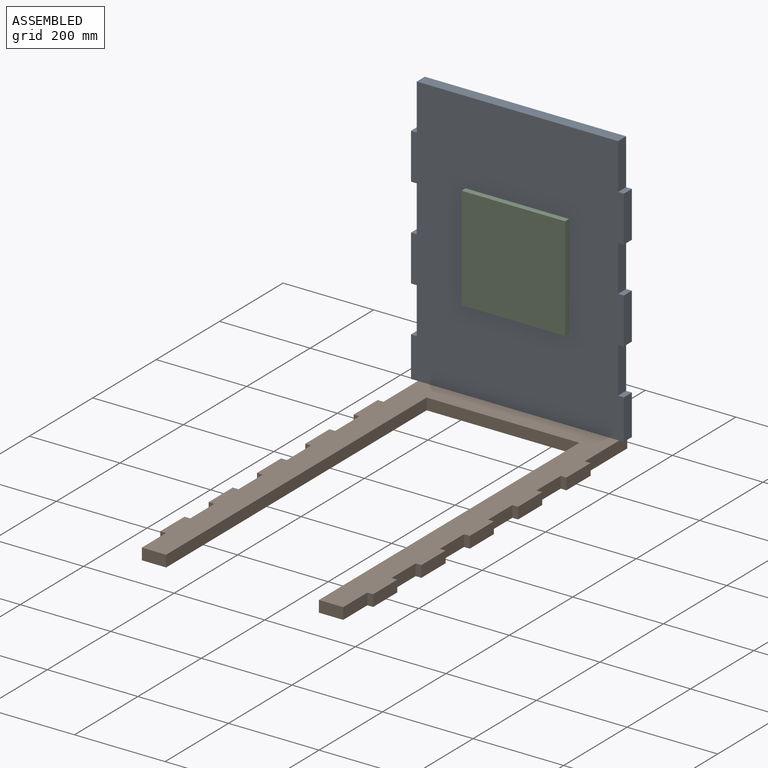
[diagram: assembled view]
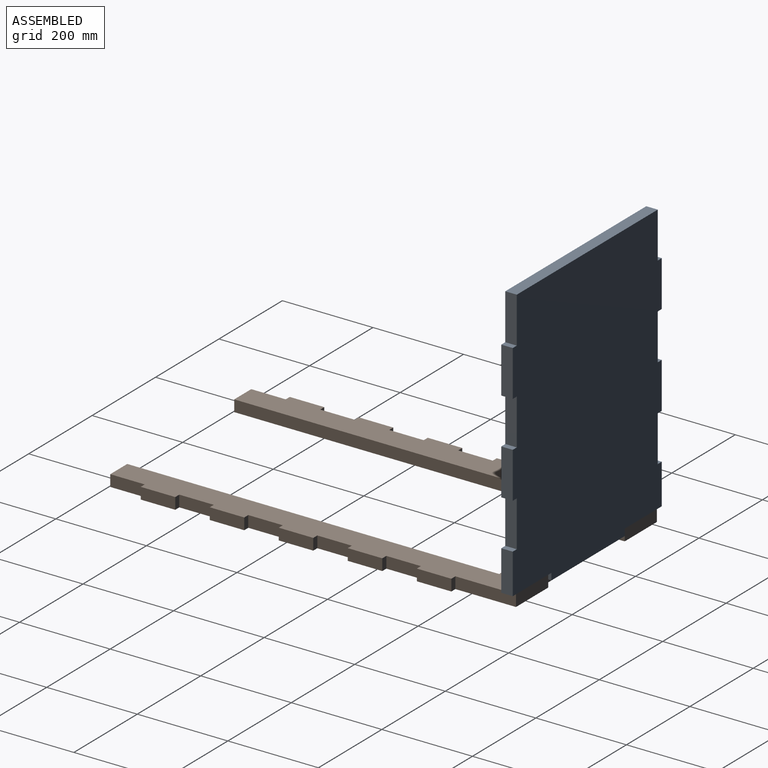
[diagram: assembled view, second angle]
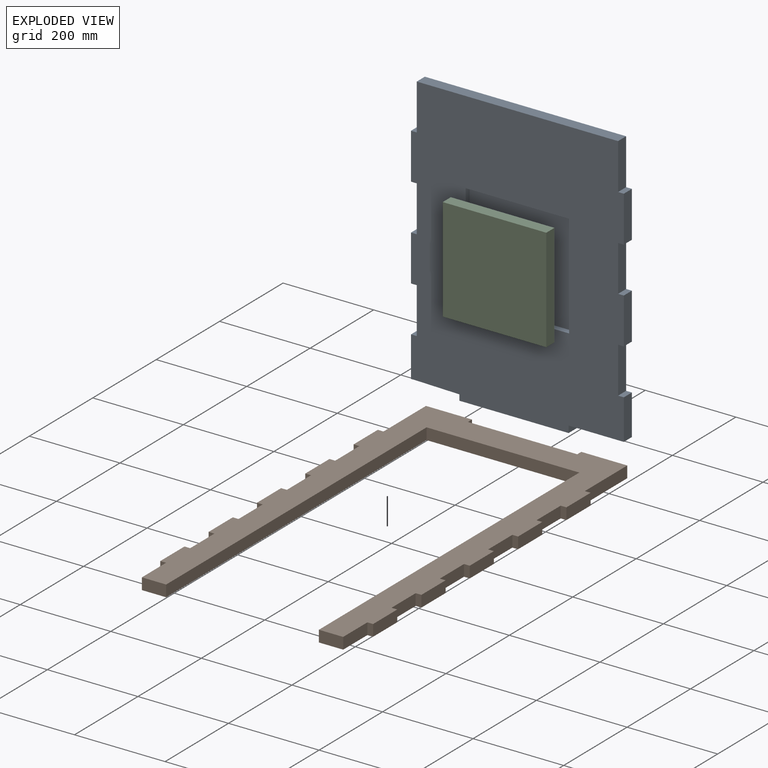
[diagram: exploded view]
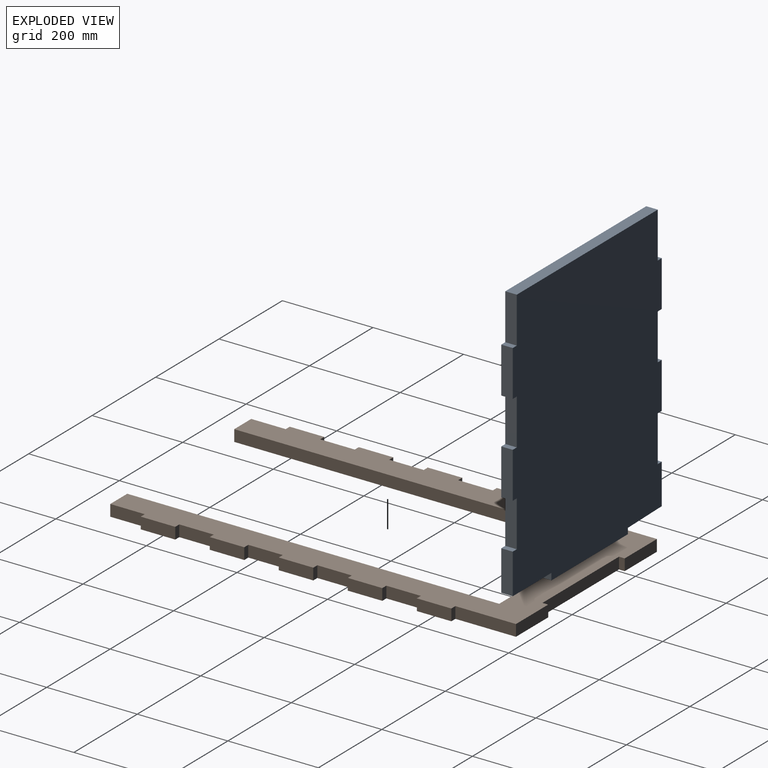
[diagram: exploded view, second angle]
ASSEMBLY  parts=3 mates=2
PART A: 36 faces, bbox 469.9x25.4x611.8 mm
  f0: plane 228.6x12.7mm, normal (1,0,0), area 2903.2mm2, adj f1,f32,f33,f35
  f1: plane 228.6x12.7mm, normal (0,0,-1), area 2903.2mm2, adj f0,f2,f33,f35
  f2: plane 228.6x12.7mm, normal (-1,0,0), area 2903.2mm2, adj f1,f32,f33,f35
  f3: plane 25.4x12.7mm, normal (0,0,1), area 322.6mm2, adj f4,f31,f33,f34
  f4: plane 101.6x25.4mm, normal (1,0,0), area 2580.6mm2, adj f3,f5,f33,f34
  f5: plane 444.5x25.4mm, normal (0,0,1), area 11290.3mm2, adj f4,f6,f33,f34
  f6: plane 101.6x25.4mm, normal (-1,0,0), area 2580.6mm2, adj f5,f7,f33,f34
  f7: plane 25.4x12.7mm, normal (0,0,1), area 322.6mm2, adj f6,f8,f33,f34
  f8: plane 101.6x25.4mm, normal (-1,0,0), area 2580.6mm2, adj f7,f9,f33,f34
  f9: plane 25.4x12.7mm, normal (0,0,-1), area 322.6mm2, adj f8,f10,f33,f34
  f10: plane 101.6x25.4mm, normal (-1,0,0), area 2580.6mm2, adj f9,f11,f33,f34
  f11: plane 25.4x12.7mm, normal (0,0,1), area 322.6mm2, adj f10,f12,f33,f34
  f12: plane 101.6x25.4mm, normal (-1,0,0), area 2580.6mm2, adj f11,f13,f33,f34
  f13: plane 25.4x12.7mm, normal (0,0,-1), area 322.6mm2, adj f12,f14,f33,f34
  f14: plane 101.6x25.4mm, normal (-1,0,0), area 2580.6mm2, adj f13,f15,f33,f34
  f15: plane 25.4x12.7mm, normal (0,0,1), area 322.6mm2, adj f14,f16,f33,f34
  f16: plane 88.9x25.4mm, normal (-1,0,0), area 2258.1mm2, adj f15,f17,f33,f34
  f17: plane 25.4x12.7mm, normal (0,0,-1), area 322.6mm2, adj f16,f18,f33,f34
  f18: plane 94.02x25.4mm, normal (-0.02,0,-1), area 2388.9mm2, adj f17,f19,f33,f34
  f19: plane 25.4x12.7mm, normal (-1,0,0), area 322.6mm2, adj f18,f20,f33,f34
  f20: plane 241.3x25.4mm, normal (0,0,-1), area 6129mm2, adj f19,f21,f33,f34
  f21: plane 25.4x14.91mm, normal (1,0,0), area 378.7mm2, adj f20,f22,f33,f34
  f22: plane 121.88x25.4mm, normal (0,0,-1), area 3095.7mm2, adj f21,f23,f33,f34
  f23: plane 88.9x25.4mm, normal (1,0,0), area 2258.1mm2, adj f22,f24,f33,f34
  f24: plane 25.4x12.7mm, normal (0,0,1), area 322.6mm2, adj f23,f25,f33,f34
  f25: plane 101.6x25.4mm, normal (1,0,0), area 2580.6mm2, adj f24,f26,f33,f34
  f26: plane 25.4x12.7mm, normal (0,0,-1), area 322.6mm2, adj f25,f27,f33,f34
  f27: plane 101.6x25.4mm, normal (1,0,0), area 2580.6mm2, adj f26,f28,f33,f34
  f28: plane 25.4x12.7mm, normal (0,0,1), area 322.6mm2, adj f27,f29,f33,f34
  f29: plane 101.6x25.4mm, normal (1,0,0), area 2580.6mm2, adj f28,f30,f33,f34
  f30: plane 25.4x12.7mm, normal (0,0,-1), area 322.6mm2, adj f29,f31,f33,f34
  f31: plane 101.6x25.4mm, normal (1,0,0), area 2580.6mm2, adj f3,f30,f33,f34
  f32: plane 228.6x12.7mm, normal (0,0,1), area 2903.2mm2, adj f0,f2,f33,f35
  f33: plane 611.81x469.9mm, normal (0,-1,0), area 224184.6mm2, adj f0,f1,f2,f3,f4,f5,f6,f7
  f34: plane 611.81x469.9mm, normal (0,1,0), area 276442.6mm2, adj f3,f4,f5,f6,f7,f8,f9,f10
  f35: plane 228.6x228.6mm, normal (0,-1,0), area 52258mm2, adj f0,f1,f2,f32
PART B: 54 faces, bbox 469.9x25.4x895.9 mm
  f0: plane 53.6x25.4mm, normal (0,0,1), area 1361.4mm2, adj f1,f2,f27,f51
  f1: plane 895.86x469.9mm, normal (0,-1,0), area 127818.1mm2, adj f0,f3,f4,f5,f6,f7,f8,f9
  f2: plane 895.86x469.9mm, normal (0,1,0), area 127818.1mm2, adj f0,f3,f4,f5,f6,f7,f8,f9
  f3: plane 25.4x12.7mm, normal (-1,0,0), area 322.6mm2, adj f1,f2,f4,f50
  f4: plane 101.6x25.4mm, normal (0,0,-1), area 2580.6mm2, adj f1,f2,f3,f5
  f5: plane 133.86x25.4mm, normal (1,0,0), area 3400mm2, adj f1,f2,f4,f6
  f6: plane 25.4x12.7mm, normal (0,0,-1), area 322.6mm2, adj f1,f2,f5,f7
  f7: plane 76.2x25.4mm, normal (1,0,0), area 1935.5mm2, adj f1,f2,f6,f8
  f8: plane 25.4x12.7mm, normal (0,0,1), area 322.6mm2, adj f1,f2,f7,f9
  f9: plane 76.2x25.4mm, normal (1,0,0), area 1935.5mm2, adj f1,f2,f8,f10
  f10: plane 25.4x12.7mm, normal (0,0,-1), area 322.6mm2, adj f1,f2,f9,f11
  f11: plane 76.2x25.4mm, normal (1,0,0), area 1935.5mm2, adj f1,f2,f10,f12
  f12: plane 25.4x12.7mm, normal (0,0,1), area 322.6mm2, adj f1,f2,f11,f13
  f13: plane 76.2x25.4mm, normal (1,0,0), area 1935.5mm2, adj f1,f2,f12,f14
  f14: plane 25.4x12.7mm, normal (0,0,-1), area 322.6mm2, adj f1,f2,f13,f15
  f15: plane 76.2x25.4mm, normal (1,0,0), area 1935.5mm2, adj f1,f2,f14,f16
  f16: plane 25.4x12.7mm, normal (0,0,1), area 322.6mm2, adj f1,f2,f15,f17
  f17: plane 76.2x25.4mm, normal (1,0,0), area 1935.5mm2, adj f1,f2,f16,f18
  f18: plane 25.4x12.7mm, normal (0,0,-1), area 322.6mm2, adj f1,f2,f17,f19
  f19: plane 76.2x25.4mm, normal (1,0,0), area 1935.5mm2, adj f1,f2,f18,f20
  f20: plane 25.4x12.7mm, normal (0,0,1), area 322.6mm2, adj f1,f2,f19,f21
  f21: plane 76.2x25.4mm, normal (1,0,0), area 1935.5mm2, adj f1,f2,f20,f22
  f22: plane 25.4x12.7mm, normal (0,0,-1), area 322.6mm2, adj f1,f2,f21,f23
  f23: plane 76.2x25.4mm, normal (1,0,0), area 1935.5mm2, adj f1,f2,f22,f24
  f24: plane 25.4x12.7mm, normal (0,0,1), area 322.6mm2, adj f1,f2,f23,f25
  f25: plane 76.2x25.4mm, normal (1,0,0), area 1935.5mm2, adj f1,f2,f24,f26
  f26: plane 53.6x25.4mm, normal (0,0,1), area 1361.4mm2, adj f1,f2,f25,f53
  f27: plane 76.2x25.4mm, normal (-1,0,0), area 1935.5mm2, adj f0,f1,f2,f28
  f28: plane 25.4x12.7mm, normal (0,0,1), area 322.6mm2, adj f1,f2,f27,f29
  f29: plane 76.2x25.4mm, normal (-1,0,0), area 1935.5mm2, adj f1,f2,f28,f30
  f30: plane 25.4x12.7mm, normal (0,0,-1), area 322.6mm2, adj f1,f2,f29,f31
  f31: plane 76.2x25.4mm, normal (-1,0,0), area 1935.5mm2, adj f1,f2,f30,f32
  f32: plane 25.4x12.7mm, normal (0,0,1), area 322.6mm2, adj f1,f2,f31,f33
  f33: plane 76.2x25.4mm, normal (-1,0,0), area 1935.5mm2, adj f1,f2,f32,f34
  f34: plane 25.4x12.7mm, normal (0,0,-1), area 322.6mm2, adj f1,f2,f33,f35
  f35: plane 76.2x25.4mm, normal (-1,0,0), area 1935.5mm2, adj f1,f2,f34,f36
  f36: plane 25.4x12.7mm, normal (0,0,1), area 322.6mm2, adj f1,f2,f35,f37
  f37: plane 76.2x25.4mm, normal (-1,0,0), area 1935.5mm2, adj f1,f2,f36,f38
  f38: plane 25.4x12.7mm, normal (0,0,-1), area 322.6mm2, adj f1,f2,f37,f39
  f39: plane 76.2x25.4mm, normal (-1,0,0), area 1935.5mm2, adj f1,f2,f38,f40
  f40: plane 25.4x12.7mm, normal (0,0,1), area 322.6mm2, adj f1,f2,f39,f41
  f41: plane 76.2x25.4mm, normal (-1,0,0), area 1935.5mm2, adj f1,f2,f40,f42
  f42: plane 25.4x12.7mm, normal (0,0,-1), area 322.6mm2, adj f1,f2,f41,f43
  f43: plane 76.2x25.4mm, normal (-1,0,0), area 1935.5mm2, adj f1,f2,f42,f44
  f44: plane 25.4x12.7mm, normal (0,0,1), area 322.6mm2, adj f1,f2,f43,f45
  f45: plane 76.2x25.4mm, normal (-1,0,0), area 1935.5mm2, adj f1,f2,f44,f46
  f46: plane 25.4x12.7mm, normal (0,0,-1), area 322.6mm2, adj f1,f2,f45,f47
  f47: plane 133.86x25.4mm, normal (-1,0,0), area 3400mm2, adj f1,f2,f46,f48
  f48: plane 101.6x25.4mm, normal (0,0,-1), area 2580.6mm2, adj f1,f2,f47,f49
  f49: plane 25.4x12.7mm, normal (1,0,0), area 322.6mm2, adj f1,f2,f48,f50
  f50: plane 241.3x25.4mm, normal (0,0,-1), area 6129mm2, adj f1,f2,f3,f49
  f51: plane 821.23x25.4mm, normal (1,0,0), area 20859.2mm2, adj f0,f1,f2,f52
  f52: plane 337.3x25.4mm, normal (0,0,1), area 8567.5mm2, adj f1,f2,f51,f53
  f53: plane 821.23x25.4mm, normal (-1,0,0), area 20859.2mm2, adj f1,f2,f26,f52
PART C: 6 faces, bbox 228.6x25.4x228.6 mm
  f0: plane 228.6x25.4mm, normal (-1,0,0), area 5806.4mm2, adj f1,f3,f4,f5
  f1: plane 228.6x25.4mm, normal (0,0,-1), area 5806.4mm2, adj f0,f2,f4,f5
  f2: plane 228.6x25.4mm, normal (1,0,0), area 5806.4mm2, adj f1,f3,f4,f5
  f3: plane 228.6x25.4mm, normal (0,0,1), area 5806.4mm2, adj f0,f2,f4,f5
  f4: plane 228.6x228.6mm, normal (0,-1,0), area 52258mm2, adj f0,f1,f2,f3
  f5: plane 228.6x228.6mm, normal (0,1,0), area 52258mm2, adj f0,f1,f2,f3
PLACE A t=(-711.38,-304.44,-62.4)mm
PLACE B rot(axis=(1,0,0),90deg) t=(-837.74,-1017.02,-360.85)mm
PLACE C t=(-778.82,-317.14,-127.98)mm
MATE fastened B.f2 <-> A.f22  axis (0,0,1) through (-537.37,-304.44,-360.85)mm
MATE fastened C.f5 <-> A.f35  axis (0,1,0) through (-711.38,-317.14,-62.4)mm
